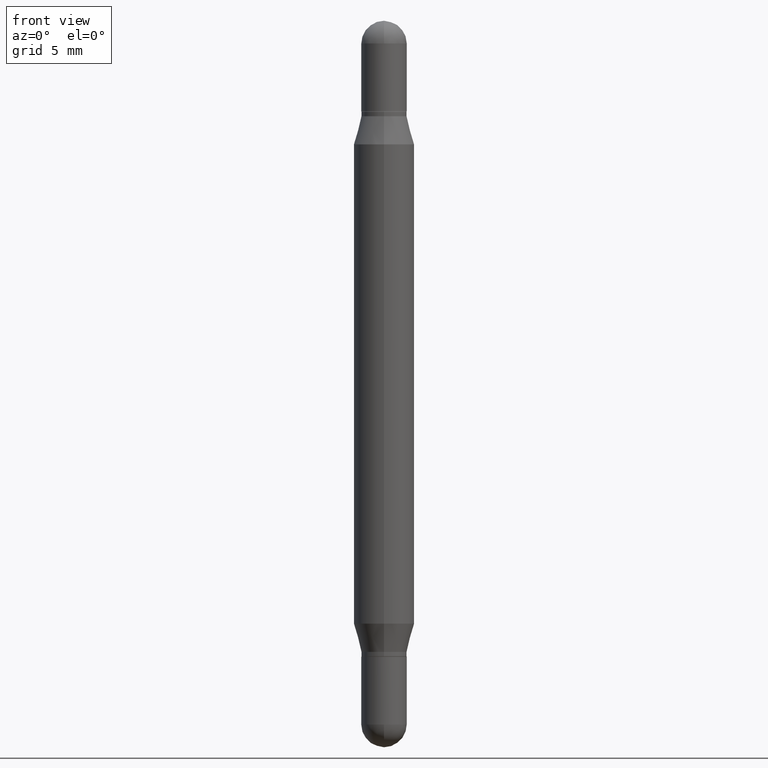
[diagram: clean part render]
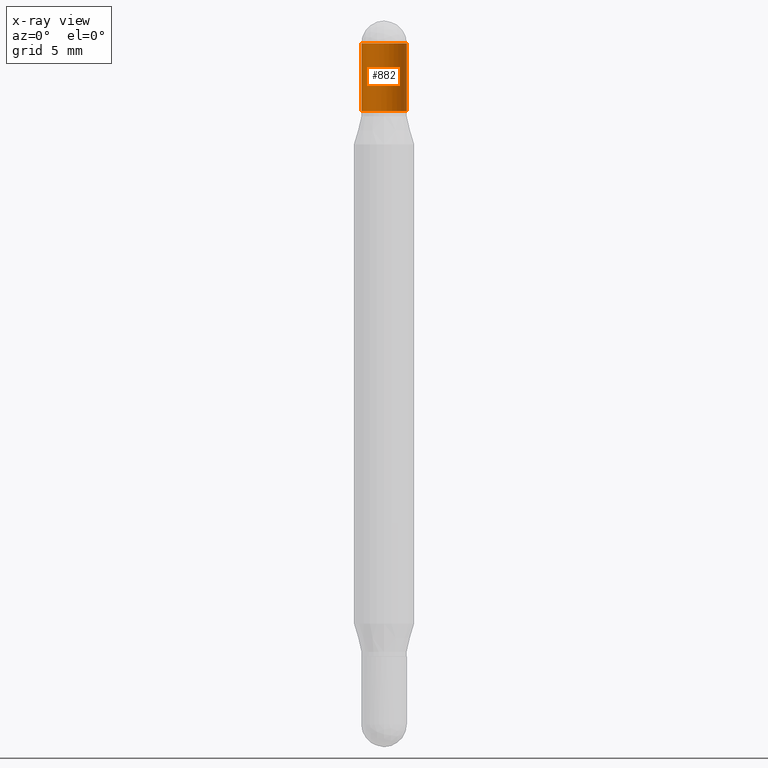
[diagram: x-ray — body ghosted, one internal face saturated and labeled with its STEP entity id]
A machine part, front view, then the same camera in x-ray: the body is ghosted and one INTERNAL B-rep face — a face not visible from any outside direction — is saturated and labeled: STEP entity #882.
In plain terms, the highlighted cylindrical surface (edge-blend (fillet) strip) has radius 1.1913 mm, axis along (-0, -0, -1).
Its self-contained STEP definition (entity closure, byte-faithful):
#37 = DIRECTION ( 'NONE',  ( 2.445468806185136597E-29, 3.479614466977828254E-15, 1.000000000000000000 ) ) ;
#51 = CYLINDRICAL_SURFACE ( 'NONE', #437, 0.04689999999999999725 ) ;
#66 = CARTESIAN_POINT ( 'NONE',  ( 0.04689999999999999725, -7.433420153955320943E-16, -0.04690000000000053154 ) ) ;
#75 = CARTESIAN_POINT ( 'NONE',  ( 3.553510722267622201E-29, -1.720940724002502970E-16, -0.04690000000000053154 ) ) ;
#79 = VERTEX_POINT ( 'NONE', #114 ) ;
#84 = CARTESIAN_POINT ( 'NONE',  ( -0.04689999999999999725, -9.408370971656128076E-17, -0.04690000000000053154 ) ) ;
#102 = DIRECTION ( 'NONE',  ( 1.000000000000000000, -6.982962677686266711E-15, 0.000000000000000000 ) ) ;
#114 = CARTESIAN_POINT ( 'NONE',  ( 0.04689999999999999725, -9.870890088073285070E-16, -0.1870000000000002216 ) ) ;
#133 = CARTESIAN_POINT ( 'NONE',  ( -0.04689999999999999725, -9.408370971656158891E-17, -0.1870000000000002216 ) ) ;
#163 = EDGE_CURVE ( 'NONE', #323, #79, #779, .T. ) ;
#185 = VERTEX_POINT ( 'NONE', #891 ) ;
#199 = EDGE_CURVE ( 'NONE', #306, #250, #443, .T. ) ;
#203 = CARTESIAN_POINT ( 'NONE',  ( 3.553510722267622201E-29, -1.720940724002502970E-16, -0.04690000000000053154 ) ) ;
#208 = ORIENTED_EDGE ( 'NONE', *, *, #211, .F. ) ;
#211 = EDGE_CURVE ( 'NONE', #185, #306, #252, .T. ) ;
#234 = DIRECTION ( 'NONE',  ( 2.445468806185136597E-29, 3.479614466977828254E-15, 1.000000000000000000 ) ) ;
#250 = VERTEX_POINT ( 'NONE', #133 ) ;
#252 = CIRCLE ( 'NONE', #610, 0.04689999999999999725 ) ;
#274 = EDGE_CURVE ( 'NONE', #79, #250, #515, .T. ) ;
#282 = DIRECTION ( 'NONE',  ( -2.445468806185136597E-29, -3.479614466977828254E-15, -1.000000000000000000 ) ) ;
#288 = ORIENTED_EDGE ( 'NONE', *, *, #199, .F. ) ;
#300 = VECTOR ( 'NONE', #964, 39.37007874015748143 ) ;
#306 = VERTEX_POINT ( 'NONE', #84 ) ;
#323 = VERTEX_POINT ( 'NONE', #66 ) ;
#338 = CIRCLE ( 'NONE', #409, 0.04689999999999999725 ) ;
#373 = CARTESIAN_POINT ( 'NONE',  ( 3.210900542521084585E-29, -6.595880592238425060E-16, -0.1870000000000002216 ) ) ;
#408 = DIRECTION ( 'NONE',  ( 1.000000000000000000, -6.982962677686266711E-15, 0.000000000000000000 ) ) ;
#409 = AXIS2_PLACEMENT_3D ( 'NONE', #75, #855, #102 ) ;
#437 = AXIS2_PLACEMENT_3D ( 'NONE', #654, #282, #457 ) ;
#443 = LINE ( 'NONE', #915, #740 ) ;
#447 = FACE_OUTER_BOUND ( 'NONE', #944, .T. ) ;
#457 = DIRECTION ( 'NONE',  ( 1.000000000000000000, -6.982962677686277755E-15, 0.000000000000000000 ) ) ;
#501 = ORIENTED_EDGE ( 'NONE', *, *, #274, .T. ) ;
#515 = CIRCLE ( 'NONE', #990, 0.04689999999999999725 ) ;
#573 = ORIENTED_EDGE ( 'NONE', *, *, #163, .T. ) ;
#610 = AXIS2_PLACEMENT_3D ( 'NONE', #203, #37, #647 ) ;
#647 = DIRECTION ( 'NONE',  ( 1.000000000000000000, -6.982962677686266711E-15, 0.000000000000000000 ) ) ;
#654 = CARTESIAN_POINT ( 'NONE',  ( 0.000000000000000000, -5.228321854365732350E-15, -1.500000000000000444 ) ) ;
#740 = VECTOR ( 'NONE', #821, 39.37007874015748143 ) ;
#743 = ORIENTED_EDGE ( 'NONE', *, *, #747, .F. ) ;
#747 = EDGE_CURVE ( 'NONE', #323, #185, #338, .T. ) ;
#779 = LINE ( 'NONE', #960, #300 ) ;
#821 = DIRECTION ( 'NONE',  ( -2.445468806185136877E-29, -3.479614466977828648E-15, -1.000000000000000000 ) ) ;
#855 = DIRECTION ( 'NONE',  ( 2.445468806185136597E-29, 3.479614466977828254E-15, 1.000000000000000000 ) ) ;
#882 = ADVANCED_FACE ( 'NONE', ( #447 ), #51, .T. ) ;
#891 = CARTESIAN_POINT ( 'NONE',  ( 3.217573560955207797E-16, 0.04689999999999990010, -0.04690000000000069114 ) ) ;
#915 = CARTESIAN_POINT ( 'NONE',  ( -0.04689999999999999725, -4.906564498270247118E-15, -1.500000000000000444 ) ) ;
#944 = EDGE_LOOP ( 'NONE', ( #288, #208, #743, #573, #501 ) ) ;
#960 = CARTESIAN_POINT ( 'NONE',  ( 0.04689999999999999725, -5.555822803949218252E-15, -1.500000000000000444 ) ) ;
#964 = DIRECTION ( 'NONE',  ( -2.445468806185136877E-29, -3.479614466977828648E-15, -1.000000000000000000 ) ) ;
#990 = AXIS2_PLACEMENT_3D ( 'NONE', #373, #234, #408 ) ;